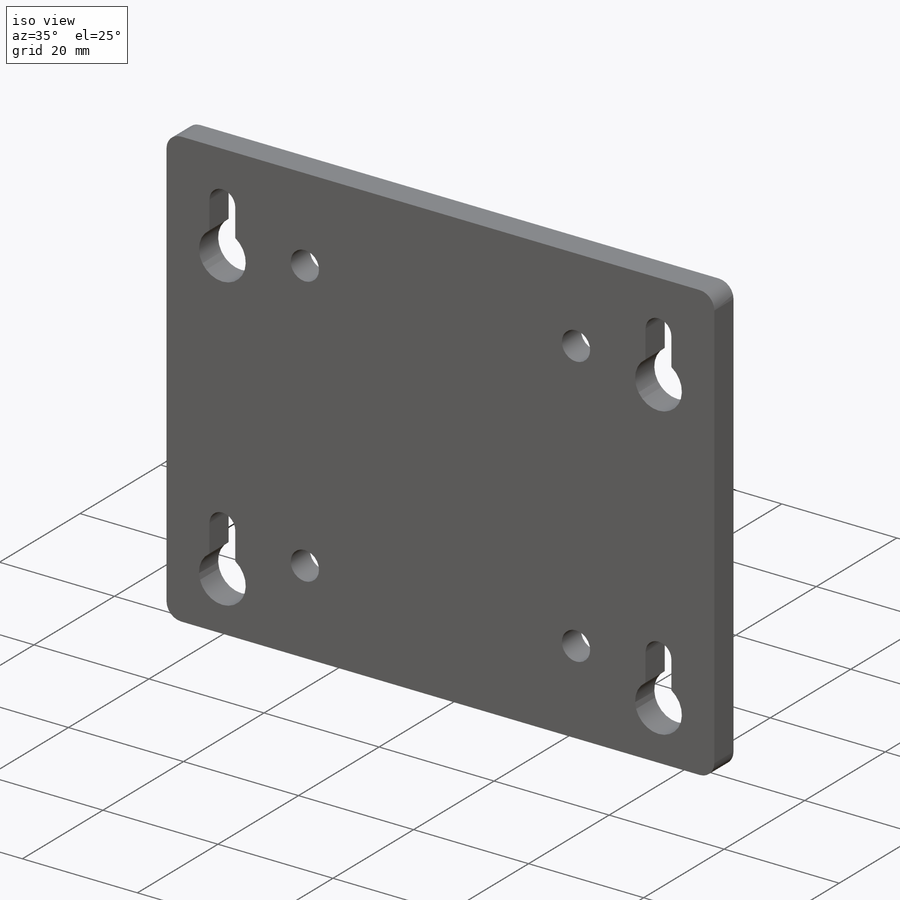
[diagram: iso view]
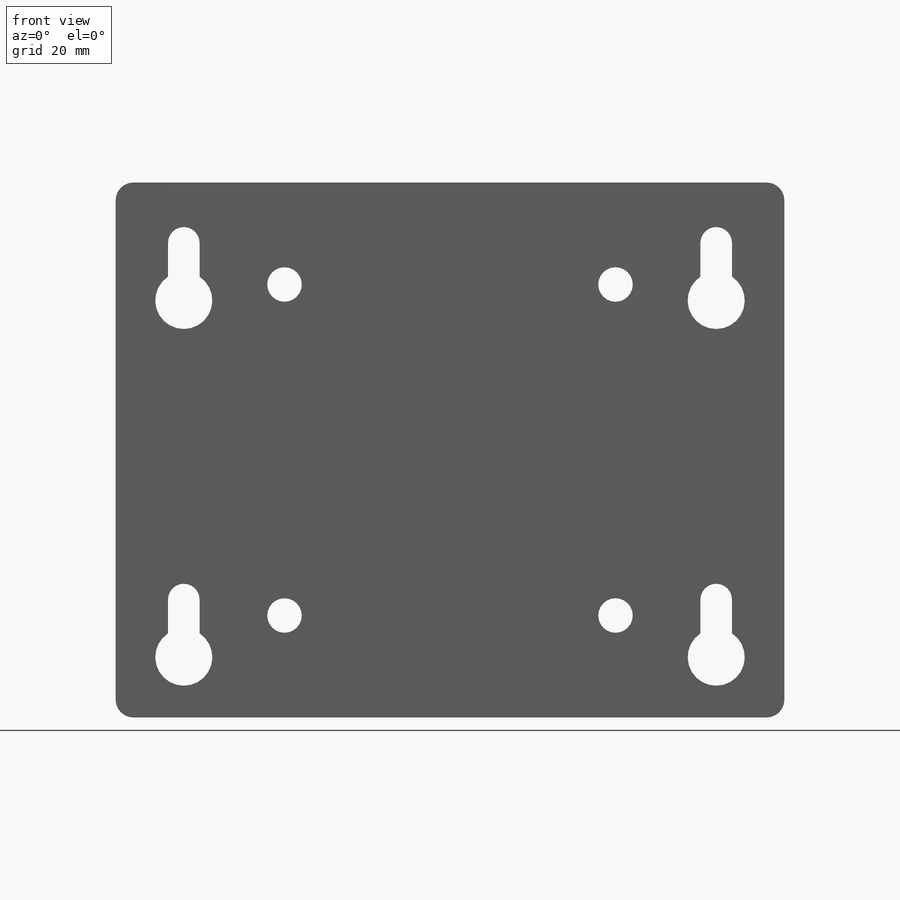
[diagram: front view]
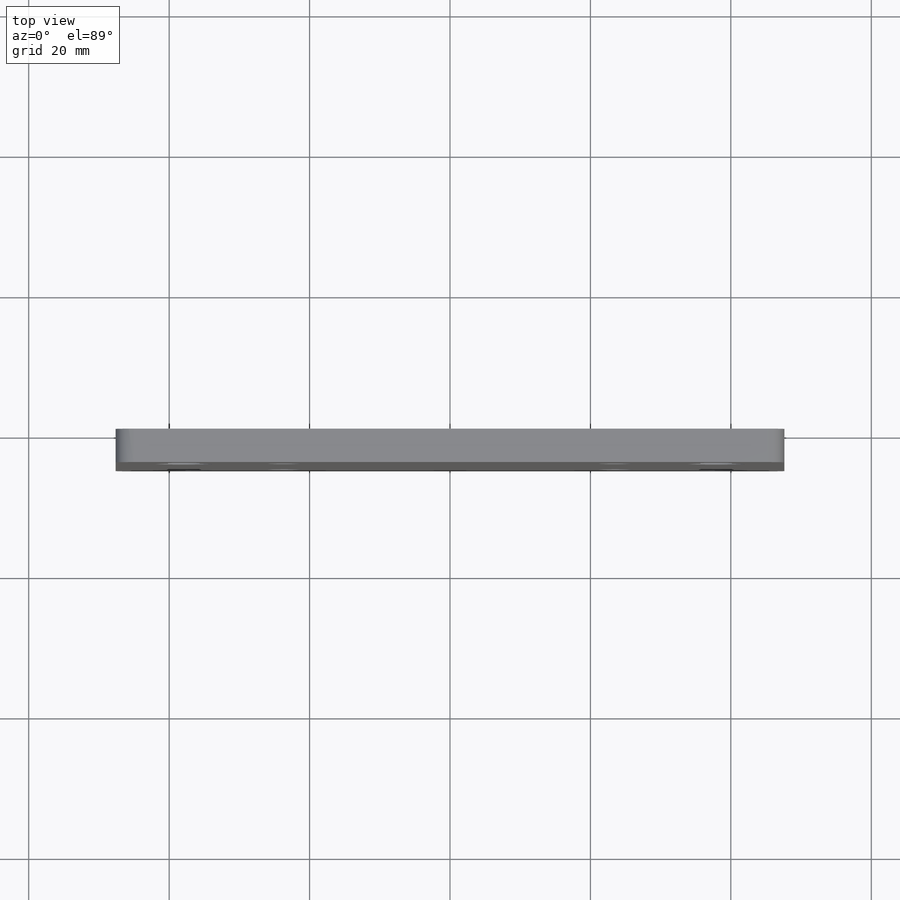
[diagram: top view]
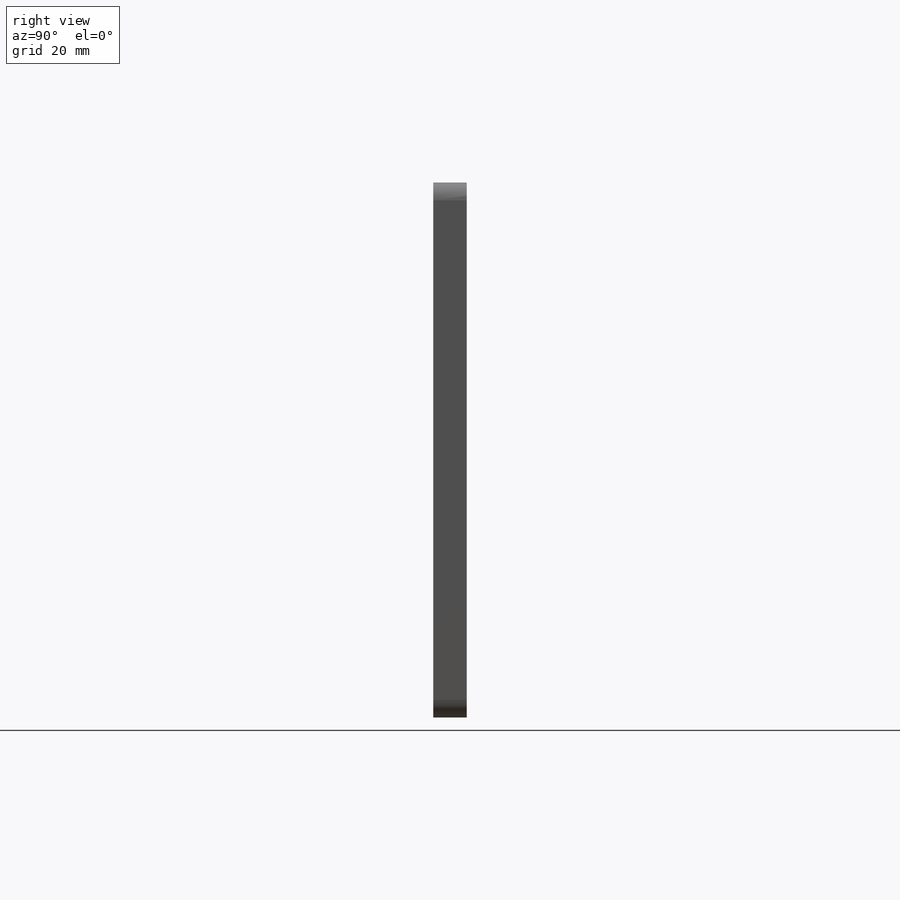
[diagram: right view]
SOLIDWORKS PART (.sldprt)
format: sldprt  version: not decoded by parser v0  size: 270,336 bytes
history: native  units: mm
features: sketch x6, hole x2, material x1, extrude x1, fillet x1, cut_extrude x1 (+13 scaffold rows collapsed)
feature tree (25):
  scaffold x13  (default folders/planes/origin — collapsed)
  material  "Material <not specified>"
  sketch  "Sketch1"  dims[D1=76.2mm D2=95.25mm]
  extrude  "Boss-Extrude1"  Depth=4.7625mm
  hole  "#8 Clearance Hole1"  Diameter=4.9149mm Depth=4.7625mm
  sketch  "Sketch3"
  sketch  "Sketch2"  dims[hole-wizard template sketch: 60 standard entries collapsed; hole parameters kept: c18.Thru Hole Depth=4.7625mm]
  fillet  "Fillet1"  Radius=2.54mm
  hole  "#8 Clearance Slot1"  Diameter=4.4958mm Depth=4.7625mm
  sketch  "Sketch5"  dims[D1=12.7mm D2=6.35mm]
  sketch  "Sketch4"  dims[hole-wizard template sketch: 60 standard entries collapsed; hole parameters kept: c18.Thru Hole Depth=4.7625mm]
  sketch  "Sketch6"  dims[D1=8.128mm D2=8.128mm]
  cut_extrude  "Cut-Extrude1"  [1 undecoded]
decode coverage: 9 of 11 modeling features carry decoded parameters
note: ~ marks probable driven/reference dimensions
note: 1 parameter value undecoded
note: suppression state not decoded; provenance and decode notes live in map.json
